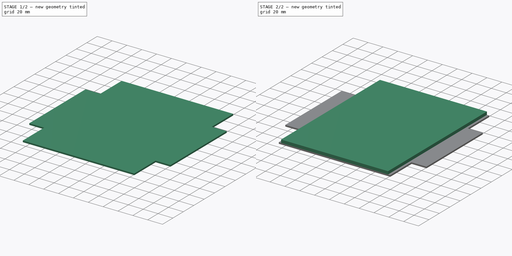
[diagram: build sequence overview — one tinted view per stage of 2, left to right]
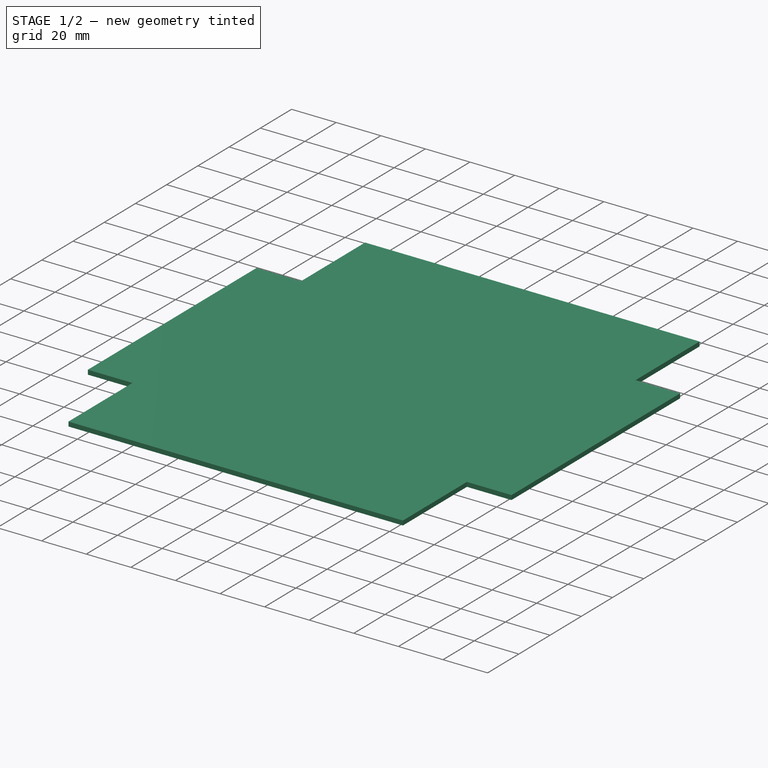
[diagram: stage 1 of 2 — iso view after this stage's code; geometry added in this stage tinted green]
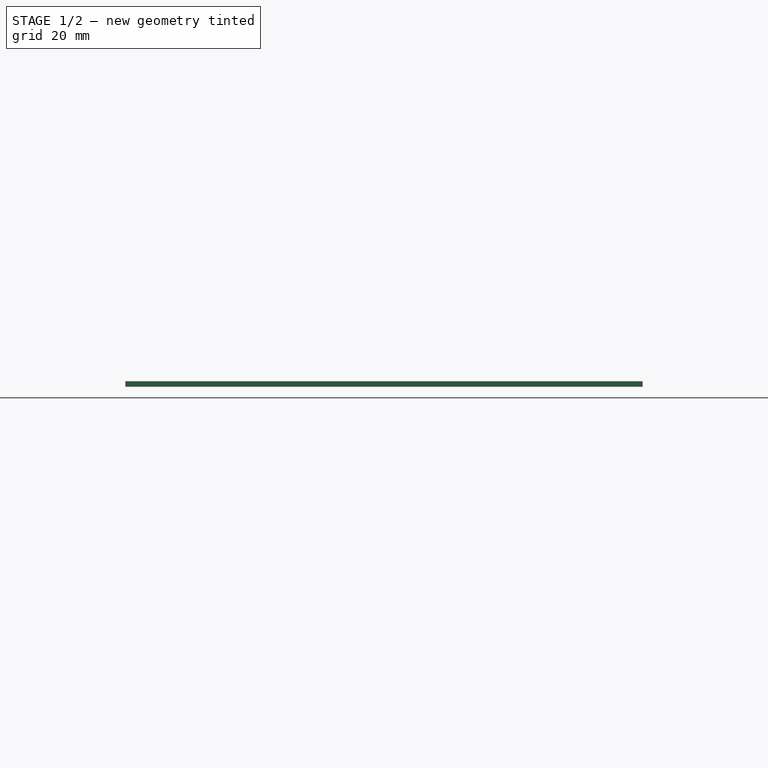
[diagram: stage 1 of 2 — front view after this stage's code; geometry added in this stage tinted green]
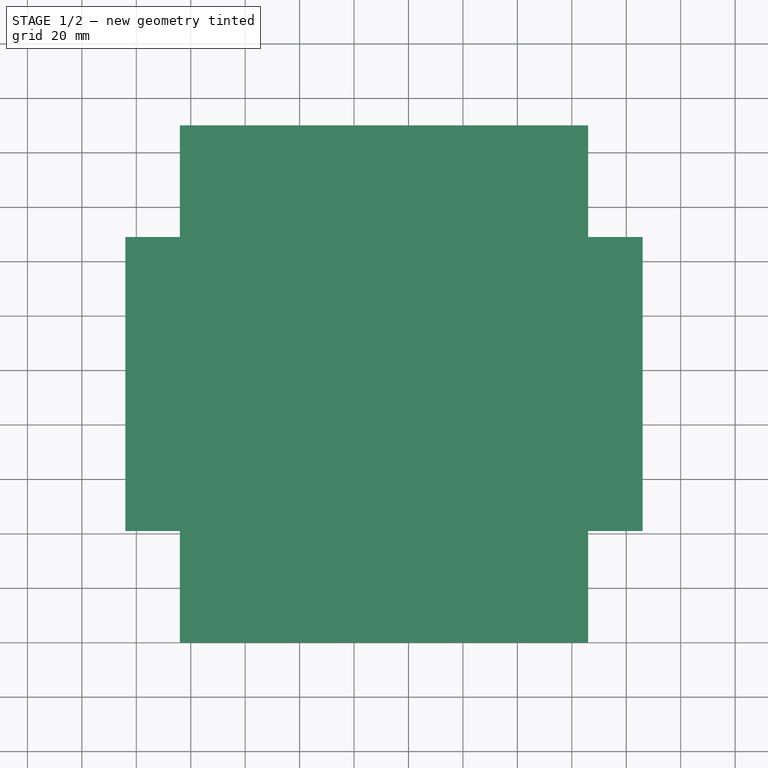
[diagram: stage 1 of 2 — top view after this stage's code; geometry added in this stage tinted green]
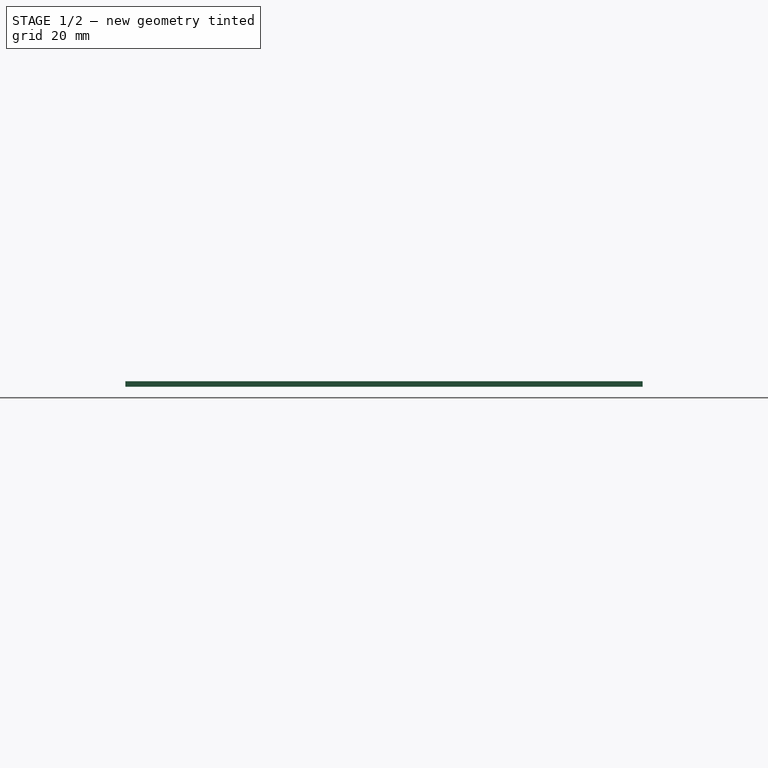
[diagram: stage 1 of 2 — right view after this stage's code; geometry added in this stage tinted green]
FCSTD DOCUMENT  (FreeCAD 0.21R33668 +7 (Git))
Label: bottom panel middle
License: All rights reserved
LicenseURL: http://en.wikipedia.org/wiki/All_rights_reserved
objects: Sketcher::SketchObject×3, PartDesign::Pad×2, PartDesign::Body×1
note: 8 computed .brp shape members not serialized (recipe doc carries the construction recipe); baked Part::Feature solids carry a one-line shape summary decoded from their .brp

FEATURE [Sketcher::SketchObject] Sketch
  FullyConstrained = true
  MapMode = 5
  Support = -> [XY_Plane]
  sketch-geometry (32):
    g0: LineSegment StartX=0 StartY=0 StartZ=0 EndX=135 EndY=0 EndZ=0
    g1: LineSegment StartX=135 StartY=190 StartZ=0 EndX=0 EndY=190 EndZ=0
    g2: LineSegment StartX=0 StartY=190 StartZ=0 EndX=0 EndY=0 EndZ=0
    g3: LineSegment StartX=136 StartY=0 StartZ=0 EndX=286 EndY=0 EndZ=0
    g4: LineSegment StartX=286 StartY=190 StartZ=0 EndX=136 EndY=190 EndZ=0
    g5: LineSegment StartX=287 StartY=0 StartZ=0 EndX=422 EndY=0 EndZ=0
    g6: LineSegment StartX=422 StartY=0 StartZ=0 EndX=422 EndY=190 EndZ=0
    g7: LineSegment StartX=422 StartY=190 StartZ=0 EndX=287 EndY=190 EndZ=0
    g8: LineSegment StartX=135 StartY=0 StartZ=0 EndX=135 EndY=40 EndZ=0
    g9: LineSegment StartX=135 StartY=40 StartZ=0 EndX=135 EndY=150 EndZ=0
    g10: LineSegment StartX=135 StartY=150 StartZ=0 EndX=135 EndY=190 EndZ=0
    g11: LineSegment StartX=287 StartY=190 StartZ=0 EndX=287 EndY=150 EndZ=0
    g12: LineSegment StartX=287 StartY=150 StartZ=0 EndX=287 EndY=40 EndZ=0
    g13: LineSegment StartX=287 StartY=40 StartZ=0 EndX=287 EndY=0 EndZ=0
    g14: LineSegment StartX=286 StartY=0 StartZ=0 EndX=286 EndY=41 EndZ=0
    g15: LineSegment StartX=286 StartY=41 StartZ=0 EndX=286 EndY=149 EndZ=0
    g16: LineSegment StartX=286 StartY=149 StartZ=0 EndX=286 EndY=190 EndZ=0
    g17: LineSegment StartX=136 StartY=190 StartZ=0 EndX=136 EndY=149 EndZ=0
    g18: LineSegment StartX=136 StartY=149 StartZ=0 EndX=136 EndY=41 EndZ=0
    g19: LineSegment StartX=136 StartY=41 StartZ=0 EndX=136 EndY=0 EndZ=0
    g20: LineSegment StartX=136 StartY=149 StartZ=0 EndX=116 EndY=149 EndZ=0
    g21: LineSegment StartX=116 StartY=149 StartZ=0 EndX=116 EndY=41 EndZ=0
    g22: LineSegment StartX=116 StartY=41 StartZ=0 EndX=136 EndY=41 EndZ=0
    g23: LineSegment StartX=135 StartY=40 StartZ=0 EndX=115 EndY=40 EndZ=0
    g24: LineSegment StartX=115 StartY=40 StartZ=0 EndX=115 EndY=150 EndZ=0
    g25: LineSegment StartX=115 StartY=150 StartZ=0 EndX=135 EndY=150 EndZ=0
    g26: LineSegment StartX=287 StartY=150 StartZ=0 EndX=307 EndY=150 EndZ=0
    g27: LineSegment StartX=307 StartY=150 StartZ=0 EndX=307 EndY=40 EndZ=0
    g28: LineSegment StartX=307 StartY=40 StartZ=0 EndX=287 EndY=40 EndZ=0
    g29: LineSegment StartX=286 StartY=41 StartZ=0 EndX=306 EndY=41 EndZ=0
    g30: LineSegment StartX=306 StartY=41 StartZ=0 EndX=306 EndY=149 EndZ=0
    g31: LineSegment StartX=306 StartY=149 StartZ=0 EndX=286 EndY=149 EndZ=0
  constraints (89):
    c: Coincident(g0,g8)
    c: Coincident(g10,g1)
    c: Coincident(g1,g2)
    c: Coincident(g2,g0)
    c: Horizontal(g0)
    c: Horizontal(g1)
    c: Vertical(g2)
    c: Coincident(g0,g-1)
    c: Distance(g2) = 190
    c: Coincident(g3,g14)
    c: Coincident(g16,g4)
    c: Coincident(g4,g17)
    c: Coincident(g19,g3)
    c: Horizontal(g3)
    c: PointOnObject(g3,g-1)
    c: Coincident(g5,g6)
    c: Coincident(g6,g7)
    c: Coincident(g7,g11)
    c: Coincident(g13,g5)
    c: Horizontal(g5)
    c: Vertical(g6)
    c: PointOnObject(g5,g-1)
    c: Tangent(g1,g4)
    c: Tangent(g7,g4)
    c: Equal(g0,g5)
    c: Distance(g0,g6) = 422
    c: Coincident(g8,g9)
    c: Vertical(g8)
    c: Distance(g3,g8) = 1
    c: Coincident(g9,g10)
    c: Vertical(g9)
    c: Vertical(g10)
    c: Coincident(g11,g12)
    c: Vertical(g11)
    c: Coincident(g12,g13)
    c: Vertical(g12)
    c: Vertical(g13)
    c: Coincident(g14,g15)
    c: Vertical(g14)
    c: Coincident(g15,g16)
    c: Vertical(g15)
    c: Vertical(g16)
    c: Coincident(g17,g18)
    c: Vertical(g17)
    c: Coincident(g18,g19)
    c: Vertical(g18)
    c: Vertical(g19)
    c: DistanceY(g8,g8) = 40
    c: Equal(g8,g13)
    c: Equal(g13,g11)
    c: Equal(g11,g10)
    c: Distance(g19) = 41
    c: Equal(g19,g17)
    c: Equal(g17,g16)
    c: Equal(g16,g14)
    c: Coincident(g17,g20)
    c: Horizontal(g20)
    c: Coincident(g20,g21)
    c: Vertical(g21)
    c: Coincident(g21,g22)
    c: Coincident(g22,g19)
    c: Horizontal(g22)
    c: Coincident(g8,g23)
    c: Horizontal(g23)
    c: Coincident(g23,g24)
    c: Vertical(g24)
    c: Coincident(g24,g25)
    c: Coincident(g25,g10)
    c: Horizontal(g25)
    c: Coincident(g11,g26)
    c: Horizontal(g26)
    c: Coincident(g26,g27)
    c: Vertical(g27)
    c: Coincident(g27,g28)
    c: Coincident(g28,g13)
    c: Horizontal(g28)
    c: Coincident(g14,g29)
    c: Horizontal(g29)
    c: Coincident(g29,g30)
    c: Vertical(g30)
    c: Coincident(g30,g31)
    c: Coincident(g31,g16)
    c: Horizontal(g31)
    c: DistanceX(g0,g0) = 135
    c: DistanceX(g20,g20) = 20
    c: Equal(g20,g31)
    c: Equal(g25,g20)
    c: Distance(g3,g13) = 1
    c: Equal(g28,g29)
FEATURE [Sketcher::SketchObject] Sketch001
  FullyConstrained = true
  MapMode = 5
  Support = -> [XY_Plane]
  sketch-geometry (32):
    g0: LineSegment StartX=0 StartY=0 StartZ=0 EndX=135 EndY=0 EndZ=0
    g1: LineSegment StartX=135 StartY=190 StartZ=0 EndX=0 EndY=190 EndZ=0
    g2: LineSegment StartX=0 StartY=190 StartZ=0 EndX=0 EndY=0 EndZ=0
    g3: LineSegment StartX=136 StartY=0 StartZ=0 EndX=286 EndY=0 EndZ=0
    g4: LineSegment StartX=286 StartY=190 StartZ=0 EndX=136 EndY=190 EndZ=0
    g5: LineSegment StartX=287 StartY=0 StartZ=0 EndX=422 EndY=0 EndZ=0
    g6: LineSegment StartX=422 StartY=0 StartZ=0 EndX=422 EndY=190 EndZ=0
    g7: LineSegment StartX=422 StartY=190 StartZ=0 EndX=287 EndY=190 EndZ=0
    g8: LineSegment StartX=135 StartY=0 StartZ=0 EndX=135 EndY=40 EndZ=0
    g9: LineSegment StartX=135 StartY=40 StartZ=0 EndX=135 EndY=150 EndZ=0
    g10: LineSegment StartX=135 StartY=150 StartZ=0 EndX=135 EndY=190 EndZ=0
    g11: LineSegment StartX=287 StartY=190 StartZ=0 EndX=287 EndY=150 EndZ=0
    g12: LineSegment StartX=287 StartY=150 StartZ=0 EndX=287 EndY=40 EndZ=0
    g13: LineSegment StartX=287 StartY=40 StartZ=0 EndX=287 EndY=0 EndZ=0
    g14: LineSegment StartX=286 StartY=0 StartZ=0 EndX=286 EndY=41 EndZ=0
    g15: LineSegment StartX=286 StartY=41 StartZ=0 EndX=286 EndY=149 EndZ=0
    g16: LineSegment StartX=286 StartY=149 StartZ=0 EndX=286 EndY=190 EndZ=0
    g17: LineSegment StartX=136 StartY=190 StartZ=0 EndX=136 EndY=149 EndZ=0
    g18: LineSegment StartX=136 StartY=149 StartZ=0 EndX=136 EndY=41 EndZ=0
    g19: LineSegment StartX=136 StartY=41 StartZ=0 EndX=136 EndY=0 EndZ=0
    g20: LineSegment StartX=136 StartY=149 StartZ=0 EndX=116 EndY=149 EndZ=0
    g21: LineSegment StartX=116 StartY=149 StartZ=0 EndX=116 EndY=41 EndZ=0
    g22: LineSegment StartX=116 StartY=41 StartZ=0 EndX=136 EndY=41 EndZ=0
    g23: LineSegment StartX=135 StartY=40 StartZ=0 EndX=115 EndY=40 EndZ=0
    g24: LineSegment StartX=115 StartY=40 StartZ=0 EndX=115 EndY=150 EndZ=0
    g25: LineSegment StartX=115 StartY=150 StartZ=0 EndX=135 EndY=150 EndZ=0
    g26: LineSegment StartX=287 StartY=150 StartZ=0 EndX=307 EndY=150 EndZ=0
    g27: LineSegment StartX=307 StartY=150 StartZ=0 EndX=307 EndY=40 EndZ=0
    g28: LineSegment StartX=307 StartY=40 StartZ=0 EndX=287 EndY=40 EndZ=0
    g29: LineSegment StartX=286 StartY=41 StartZ=0 EndX=306 EndY=41 EndZ=0
    g30: LineSegment StartX=306 StartY=41 StartZ=0 EndX=306 EndY=149 EndZ=0
    g31: LineSegment StartX=306 StartY=149 StartZ=0 EndX=286 EndY=149 EndZ=0
  constraints (89):
    c: Coincident(g0,g8)
    c: Coincident(g10,g1)
    c: Coincident(g1,g2)
    c: Coincident(g2,g0)
    c: Horizontal(g0)
    c: Horizontal(g1)
    c: Vertical(g2)
    c: Coincident(g0,g-1)
    c: Distance(g2) = 190
    c: Coincident(g3,g14)
    c: Coincident(g16,g4)
    c: Coincident(g4,g17)
    c: Coincident(g19,g3)
    c: Horizontal(g3)
    c: PointOnObject(g3,g-1)
    c: Coincident(g5,g6)
    c: Coincident(g6,g7)
    c: Coincident(g7,g11)
    c: Coincident(g13,g5)
    c: Horizontal(g5)
    c: Vertical(g6)
    c: PointOnObject(g5,g-1)
    c: Tangent(g1,g4)
    c: Tangent(g7,g4)
    c: Equal(g0,g5)
    c: Distance(g0,g6) = 422
    c: Coincident(g8,g9)
    c: Vertical(g8)
    c: Distance(g3,g8) = 1
    c: Coincident(g9,g10)
    c: Vertical(g9)
    c: Vertical(g10)
    c: Coincident(g11,g12)
    c: Vertical(g11)
    c: Coincident(g12,g13)
    c: Vertical(g12)
    c: Vertical(g13)
    c: Coincident(g14,g15)
    c: Vertical(g14)
    c: Coincident(g15,g16)
    c: Vertical(g15)
    c: Vertical(g16)
    c: Coincident(g17,g18)
    c: Vertical(g17)
    c: Coincident(g18,g19)
    c: Vertical(g18)
    c: Vertical(g19)
    c: DistanceY(g8,g8) = 40
    c: Equal(g8,g13)
    c: Equal(g13,g11)
    c: Equal(g11,g10)
    c: Distance(g19) = 41
    c: Equal(g19,g17)
    c: Equal(g17,g16)
    c: Equal(g16,g14)
    c: Coincident(g17,g20)
    c: Horizontal(g20)
    c: Coincident(g20,g21)
    c: Vertical(g21)
    c: Coincident(g21,g22)
    c: Coincident(g22,g19)
    c: Horizontal(g22)
    c: Coincident(g8,g23)
    c: Horizontal(g23)
    c: Coincident(g23,g24)
    c: Vertical(g24)
    c: Coincident(g24,g25)
    c: Coincident(g25,g10)
    c: Horizontal(g25)
    c: Coincident(g11,g26)
    c: Horizontal(g26)
    c: Coincident(g26,g27)
    c: Vertical(g27)
    c: Coincident(g27,g28)
    c: Coincident(g28,g13)
    c: Horizontal(g28)
    c: Coincident(g14,g29)
    c: Horizontal(g29)
    c: Coincident(g29,g30)
    c: Vertical(g30)
    c: Coincident(g30,g31)
    c: Coincident(g31,g16)
    c: Horizontal(g31)
    c: DistanceX(g0,g0) = 135
    c: DistanceX(g20,g20) = 20
    c: Equal(g20,g31)
    c: Equal(g25,g20)
    c: Distance(g3,g13) = 1
    c: Equal(g28,g29)
FEATURE [PartDesign::Pad] Pad
  Direction = (0,0,1)
  Length = 2
  Length2 = 10
  Profile = -> Sketch001
  ReferenceAxis = -> Sketch001 [N_Axis]
  Type = 0
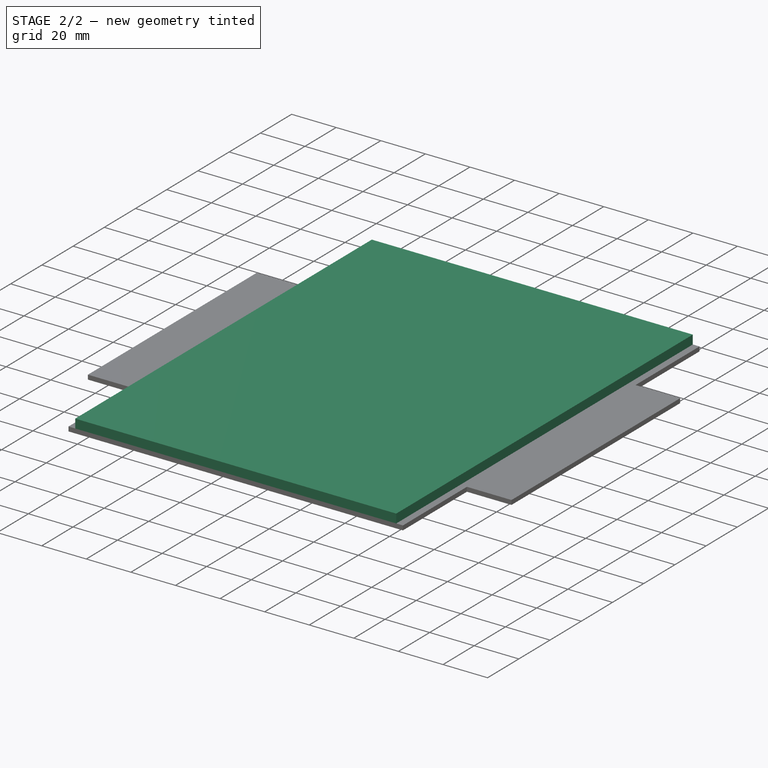
[diagram: stage 2 of 2 — iso view after this stage's code; geometry added in this stage tinted green]
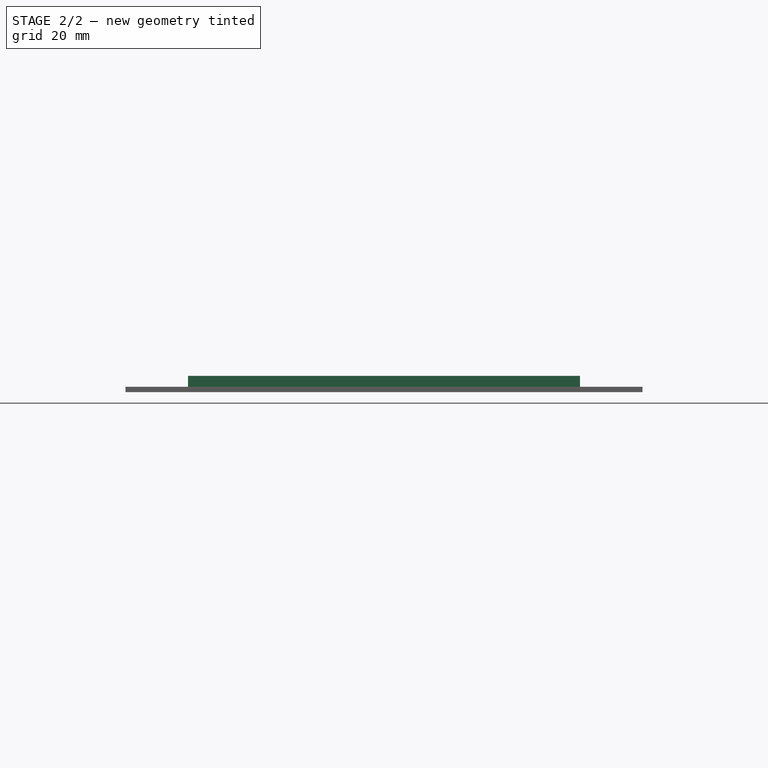
[diagram: stage 2 of 2 — front view after this stage's code; geometry added in this stage tinted green]
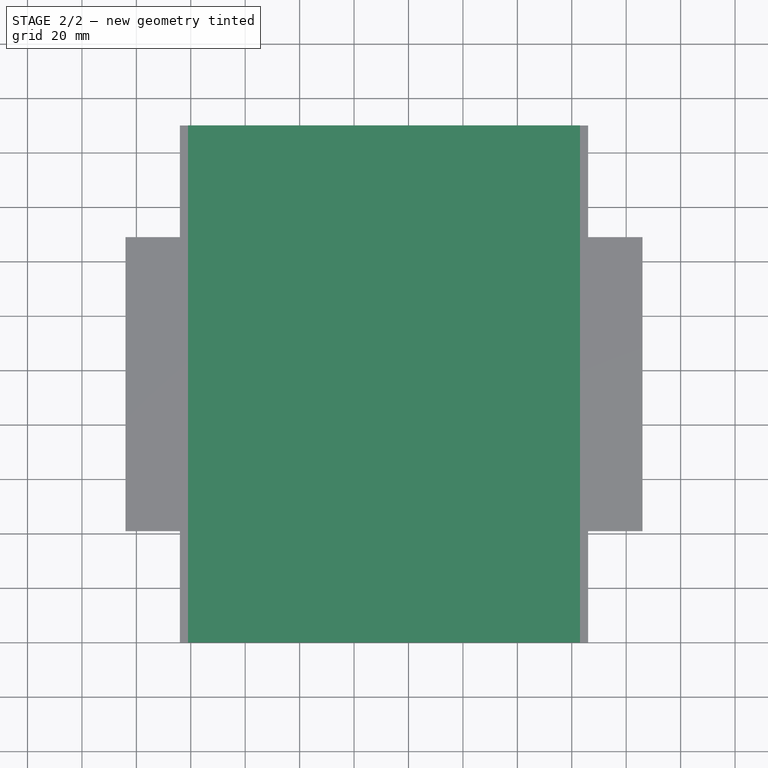
[diagram: stage 2 of 2 — top view after this stage's code; geometry added in this stage tinted green]
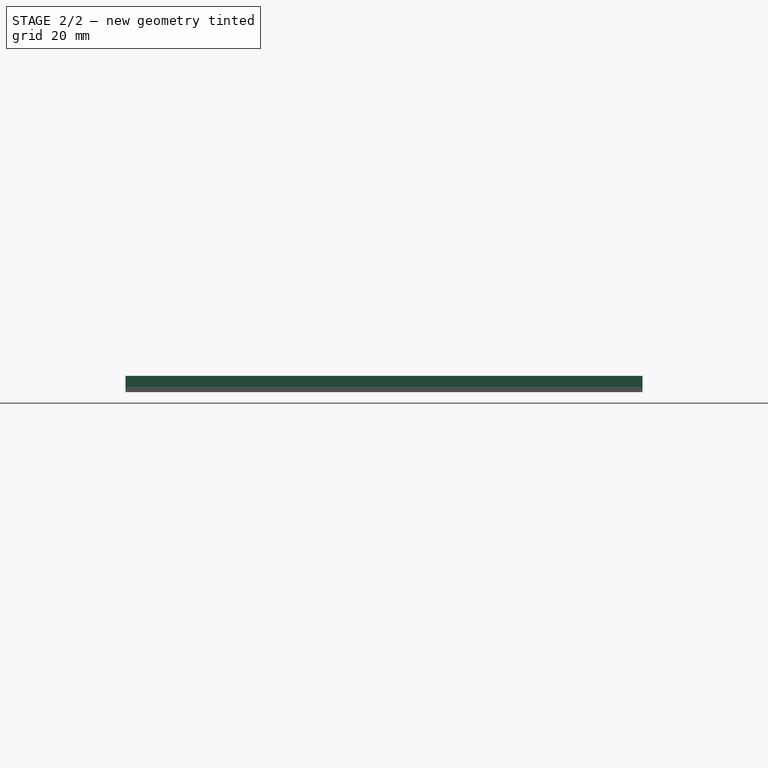
[diagram: stage 2 of 2 — right view after this stage's code; geometry added in this stage tinted green]
FEATURE [Sketcher::SketchObject] Sketch004
  FullyConstrained = true
  MapMode = 5
  Support = -> [XY_Plane]
  expr: Constraints[11] = 422 - 139 * 2
  sketch-geometry (4):
    g0: LineSegment StartX=139 StartY=0 StartZ=0 EndX=283 EndY=0 EndZ=0
    g1: LineSegment StartX=283 StartY=0 StartZ=0 EndX=283 EndY=190 EndZ=0
    g2: LineSegment StartX=283 StartY=190 StartZ=0 EndX=139 EndY=190 EndZ=0
    g3: LineSegment StartX=139 StartY=190 StartZ=0 EndX=139 EndY=0 EndZ=0
  constraints (12):
    c: Coincident(g0,g1)
    c: Coincident(g1,g2)
    c: Coincident(g2,g3)
    c: Coincident(g3,g0)
    c: Horizontal(g0)
    c: Horizontal(g2)
    c: Vertical(g1)
    c: Vertical(g3)
    c: PointOnObject(g0,g-1)
    c: DistanceY(g2) = 190
    c: DistanceX(g0) = 139
    c: DistanceX(g0,g0) = 144
FEATURE [PartDesign::Pad] Pad001
  BaseFeature = -> Pad
  Direction = (0,0,1)
  Length = 6
  Length2 = 10
  Profile = -> Sketch004
  ReferenceAxis = -> Sketch004 [N_Axis]
  Type = 0
FEATURE [PartDesign::Body] Body
  Group = -> [Sketch,Sketch001,Pad,Sketch004,Pad001]
  Origin = -> Origin
  Tip = -> Pad001
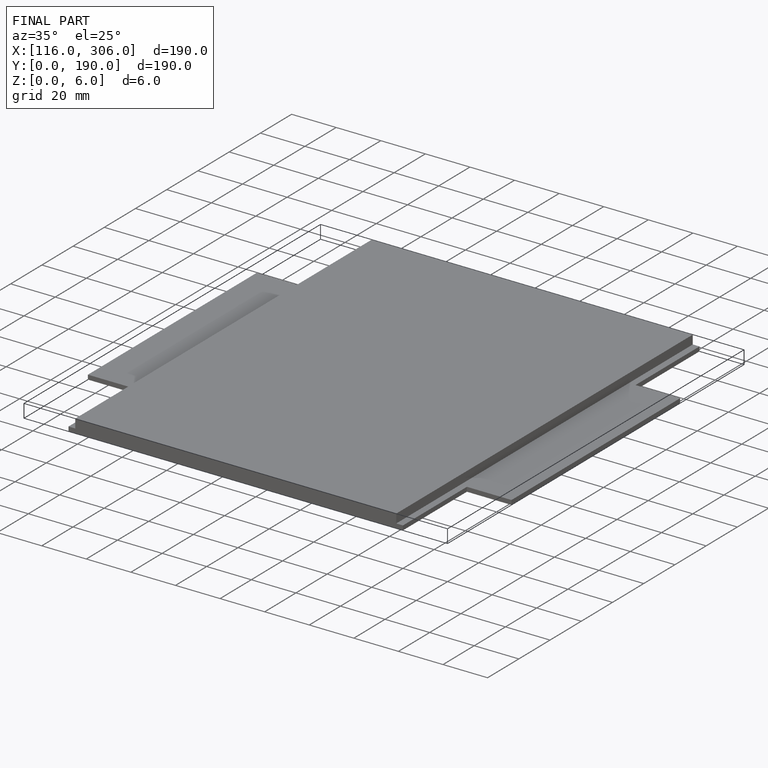
[diagram: finished part — iso view with bounding-box wireframe]
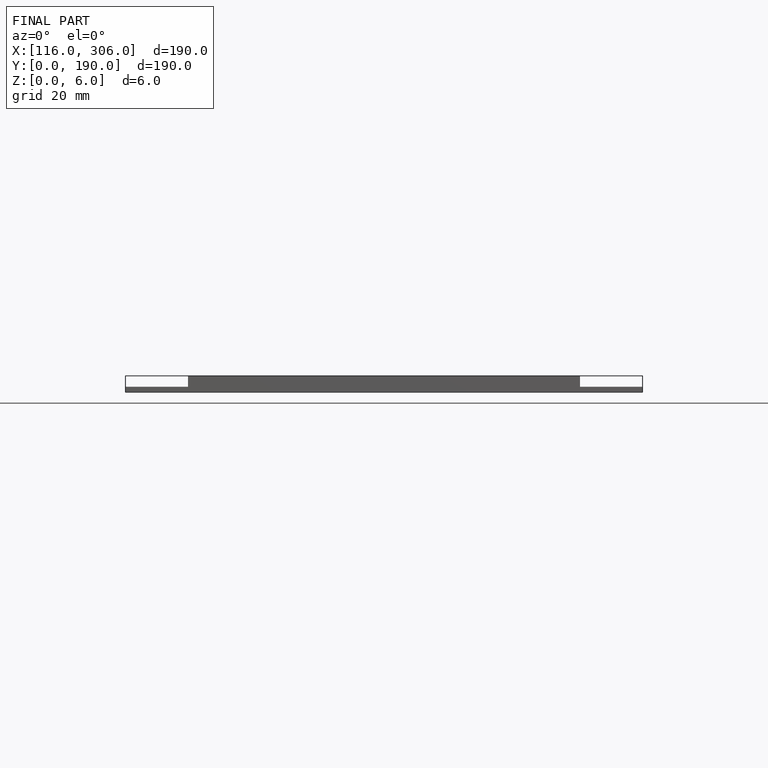
[diagram: finished part — front view with bounding-box wireframe]
